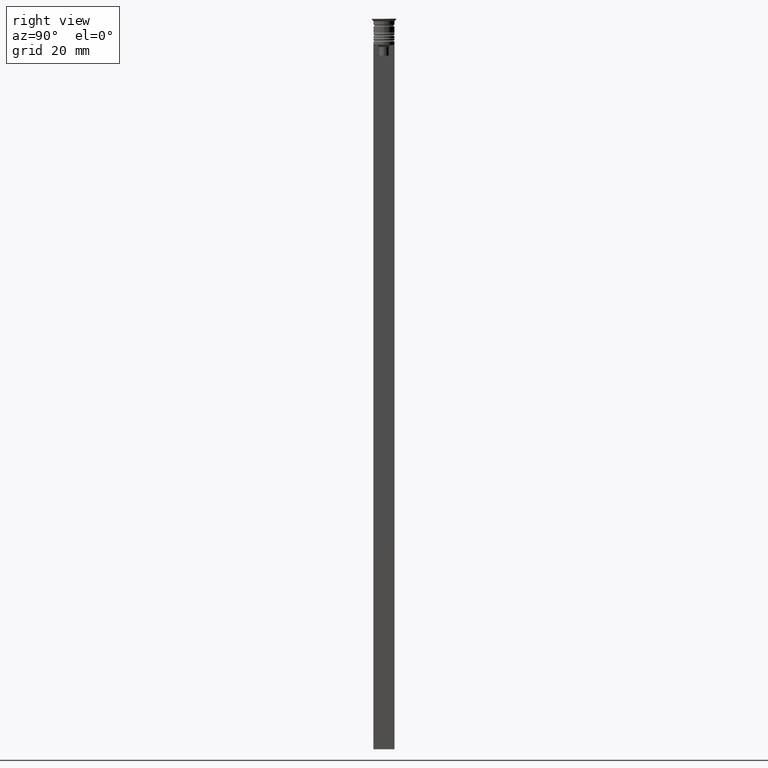
[diagram: clean part render]
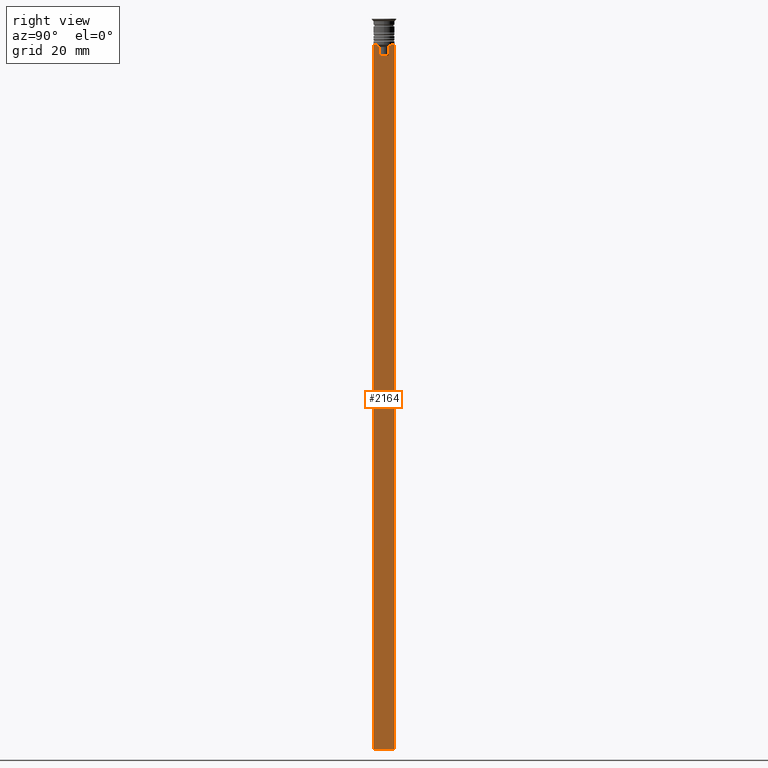
[diagram: same view with one face highlighted and labeled with its STEP entity id]
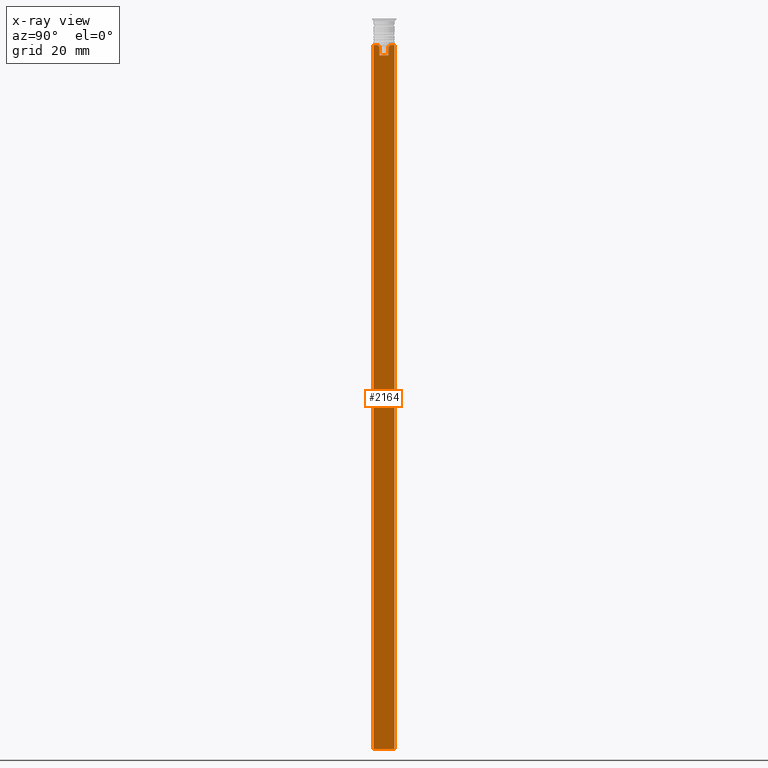
[diagram: x-ray of the same camera — body ghosted, the highlighted face saturated]
A machine part, right view. The second image highlights one B-rep face of the part: STEP entity #2164.
The next image is the same camera in x-ray: the body ghosted, the highlighted face saturated — about 0% of this face is hidden behind the body in this view.
In plain terms, the highlighted planar face has unit normal (-1, 0, 0).
Its self-contained STEP definition (entity closure, byte-faithful):
#61 = VECTOR ( 'NONE', #424, 1000.000000000000000 ) ;
#84 = VERTEX_POINT ( 'NONE', #506 ) ;
#119 = CARTESIAN_POINT ( 'NONE',  ( 0.4999999999999998890, 1.399999999999997691, -10.49999999999999822 ) ) ;
#123 = CARTESIAN_POINT ( 'NONE',  ( 0.4999999999999998890, -1.307669683062199439, 0.000000000000000000 ) ) ;
#124 = PLANE ( 'NONE',  #1947 ) ;
#136 = VECTOR ( 'NONE', #274, 1000.000000000000000 ) ;
#184 = DIRECTION ( 'NONE',  ( 0.000000000000000000, -1.000000000000000000, 0.000000000000000000 ) ) ;
#185 = EDGE_CURVE ( 'NONE', #505, #1090, #1734, .T. ) ;
#229 = CARTESIAN_POINT ( 'NONE',  ( 0.4999999999999998890, -3.000000000000000000, -207.5000000000000284 ) ) ;
#264 = DIRECTION ( 'NONE',  ( 0.000000000000000000, -1.000000000000000000, 0.000000000000000000 ) ) ;
#274 = DIRECTION ( 'NONE',  ( -0.000000000000000000, -0.000000000000000000, 1.000000000000000000 ) ) ;
#284 = VECTOR ( 'NONE', #184, 1000.000000000000000 ) ;
#302 = FACE_OUTER_BOUND ( 'NONE', #338, .T. ) ;
#312 = EDGE_CURVE ( 'NONE', #719, #1744, #1355, .T. ) ;
#338 = EDGE_LOOP ( 'NONE', ( #382, #1747, #1244, #1580, #576, #462, #2330, #547, #573, #410, #2153, #690 ) ) ;
#352 = CARTESIAN_POINT ( 'NONE',  ( 0.4999999999999998890, -3.000000000000000000, -207.5000000000000284 ) ) ;
#357 = VECTOR ( 'NONE', #833, 1000.000000000000000 ) ;
#382 = ORIENTED_EDGE ( 'NONE', *, *, #1511, .T. ) ;
#394 = VECTOR ( 'NONE', #1999, 1000.000000000000000 ) ;
#410 = ORIENTED_EDGE ( 'NONE', *, *, #1076, .T. ) ;
#424 = DIRECTION ( 'NONE',  ( 0.000000000000000000, 0.000000000000000000, -1.000000000000000000 ) ) ;
#462 = ORIENTED_EDGE ( 'NONE', *, *, #712, .T. ) ;
#499 = EDGE_CURVE ( 'NONE', #2116, #1032, #963, .T. ) ;
#502 = DIRECTION ( 'NONE',  ( -1.000000000000000000, 0.000000000000000000, 0.000000000000000000 ) ) ;
#505 = VERTEX_POINT ( 'NONE', #1015 ) ;
#506 = CARTESIAN_POINT ( 'NONE',  ( 0.4999999999999998890, -1.833030277982335754, -7.500000000000000000 ) ) ;
#547 = ORIENTED_EDGE ( 'NONE', *, *, #2302, .T. ) ;
#573 = ORIENTED_EDGE ( 'NONE', *, *, #1552, .T. ) ;
#576 = ORIENTED_EDGE ( 'NONE', *, *, #930, .T. ) ;
#595 = LINE ( 'NONE', #229, #1301 ) ;
#607 = CARTESIAN_POINT ( 'NONE',  ( 0.4999999999999998890, -3.000000000000000000, -7.500000000000000000 ) ) ;
#690 = ORIENTED_EDGE ( 'NONE', *, *, #794, .T. ) ;
#706 = CARTESIAN_POINT ( 'NONE',  ( 0.4999999999999998890, 1.307669683062199439, -8.000000000000000000 ) ) ;
#712 = EDGE_CURVE ( 'NONE', #832, #84, #1531, .T. ) ;
#718 = LINE ( 'NONE', #1465, #803 ) ;
#719 = VERTEX_POINT ( 'NONE', #1789 ) ;
#794 = EDGE_CURVE ( 'NONE', #2116, #1541, #1849, .T. ) ;
#795 = VERTEX_POINT ( 'NONE', #607 ) ;
#803 = VECTOR ( 'NONE', #1815, 1000.000000000000000 ) ;
#832 = VERTEX_POINT ( 'NONE', #968 ) ;
#833 = DIRECTION ( 'NONE',  ( 0.000000000000000000, -1.000000000000000000, 0.000000000000000000 ) ) ;
#851 = DIRECTION ( 'NONE',  ( 0.000000000000000000, 0.000000000000000000, 1.000000000000000000 ) ) ;
#883 = EDGE_CURVE ( 'NONE', #1744, #505, #2041, .T. ) ;
#904 = CARTESIAN_POINT ( 'NONE',  ( 0.4999999999999998890, 1.659046061654642967, -7.667851756010362507 ) ) ;
#930 = EDGE_CURVE ( 'NONE', #1090, #832, #1717, .T. ) ;
#934 = CARTESIAN_POINT ( 'NONE',  ( 0.4999999999999998890, 1.307669683062199439, 0.000000000000000000 ) ) ;
#941 = DIRECTION ( 'NONE',  ( 0.000000000000000000, 1.000000000000000000, 0.000000000000000000 ) ) ;
#963 = LINE ( 'NONE', #1689, #2132 ) ;
#968 = CARTESIAN_POINT ( 'NONE',  ( 0.4999999999999998890, -1.307669683062199439, -8.000000000000000000 ) ) ;
#1015 = CARTESIAN_POINT ( 'NONE',  ( 0.4999999999999998890, 1.307669683062199439, -10.49999999999999822 ) ) ;
#1032 = VERTEX_POINT ( 'NONE', #1739 ) ;
#1076 = EDGE_CURVE ( 'NONE', #1951, #1032, #595, .T. ) ;
#1090 = VERTEX_POINT ( 'NONE', #2027 ) ;
#1244 = ORIENTED_EDGE ( 'NONE', *, *, #883, .T. ) ;
#1301 = VECTOR ( 'NONE', #941, 1000.000000000000000 ) ;
#1355 = B_SPLINE_CURVE_WITH_KNOTS ( 'NONE', 3,
 ( #2195, #904, #1630, #1827 ),
 .UNSPECIFIED., .F., .F.,
 ( 4, 4 ),
 ( 0.003278537493109848298, 0.004003794023484941178 ),
 .UNSPECIFIED. ) ;
#1358 = CARTESIAN_POINT ( 'NONE',  ( 0.4999999999999998890, -3.000000000000000000, -1.417237469701779329 ) ) ;
#1411 = DIRECTION ( 'NONE',  ( 0.000000000000000000, 0.000000000000000000, -1.000000000000000000 ) ) ;
#1445 = CARTESIAN_POINT ( 'NONE',  ( 0.4999999999999998890, -1.307669683062199439, -8.000000000000000000 ) ) ;
#1465 = CARTESIAN_POINT ( 'NONE',  ( 0.4999999999999998890, -3.000000000000000000, -1.417237469701779329 ) ) ;
#1471 = CARTESIAN_POINT ( 'NONE',  ( 0.4999999999999998890, -3.000000000000000000, -7.500000000000000000 ) ) ;
#1511 = EDGE_CURVE ( 'NONE', #1541, #719, #1666, .T. ) ;
#1531 = B_SPLINE_CURVE_WITH_KNOTS ( 'NONE', 3,
 ( #1445, #1810, #2013, #1969 ),
 .UNSPECIFIED., .F., .F.,
 ( 4, 4 ),
 ( 0.007225659348748082224, 0.007950554640278054835 ),
 .UNSPECIFIED. ) ;
#1541 = VERTEX_POINT ( 'NONE', #1806 ) ;
#1552 = EDGE_CURVE ( 'NONE', #795, #1951, #718, .T. ) ;
#1580 = ORIENTED_EDGE ( 'NONE', *, *, #185, .T. ) ;
#1630 = CARTESIAN_POINT ( 'NONE',  ( 0.4999999999999998890, 1.484355510416485835, -7.834966642958598015 ) ) ;
#1666 = LINE ( 'NONE', #1989, #394 ) ;
#1689 = CARTESIAN_POINT ( 'NONE',  ( 0.4999999999999998890, 3.000000000000000000, -1.417237469701779329 ) ) ;
#1708 = VERTEX_POINT ( 'NONE', #2077 ) ;
#1717 = LINE ( 'NONE', #123, #136 ) ;
#1734 = LINE ( 'NONE', #119, #357 ) ;
#1739 = CARTESIAN_POINT ( 'NONE',  ( 0.4999999999999998890, 3.000000000000000000, -207.5000000000000284 ) ) ;
#1740 = CARTESIAN_POINT ( 'NONE',  ( 0.4999999999999998890, -3.000000000000000000, -7.500000000000000000 ) ) ;
#1744 = VERTEX_POINT ( 'NONE', #706 ) ;
#1747 = ORIENTED_EDGE ( 'NONE', *, *, #312, .T. ) ;
#1776 = LINE ( 'NONE', #1740, #2210 ) ;
#1789 = CARTESIAN_POINT ( 'NONE',  ( 0.4999999999999998890, 1.833030277982335754, -7.500000000000000000 ) ) ;
#1806 = CARTESIAN_POINT ( 'NONE',  ( 0.4999999999999998890, 2.856571371417139904, -7.500000000000000000 ) ) ;
#1810 = CARTESIAN_POINT ( 'NONE',  ( 0.4999999999999998890, -1.484307477388859153, -7.835011508197190722 ) ) ;
#1815 = DIRECTION ( 'NONE',  ( 0.000000000000000000, 0.000000000000000000, -1.000000000000000000 ) ) ;
#1827 = CARTESIAN_POINT ( 'NONE',  ( 0.4999999999999998890, 1.307669683062199439, -8.000000000000000000 ) ) ;
#1849 = LINE ( 'NONE', #2226, #2058 ) ;
#1947 = AXIS2_PLACEMENT_3D ( 'NONE', #1358, #502, #851 ) ;
#1951 = VERTEX_POINT ( 'NONE', #352 ) ;
#1969 = CARTESIAN_POINT ( 'NONE',  ( 0.4999999999999998890, -1.833030277982335754, -7.500000000000000000 ) ) ;
#1979 = LINE ( 'NONE', #1471, #284 ) ;
#1989 = CARTESIAN_POINT ( 'NONE',  ( 0.4999999999999998890, -3.000000000000000000, -7.500000000000000000 ) ) ;
#1999 = DIRECTION ( 'NONE',  ( 0.000000000000000000, -1.000000000000000000, 0.000000000000000000 ) ) ;
#2013 = CARTESIAN_POINT ( 'NONE',  ( 0.4999999999999998890, -1.659011726860414093, -7.667884880598472286 ) ) ;
#2027 = CARTESIAN_POINT ( 'NONE',  ( 0.4999999999999998890, -1.307669683062199439, -10.49999999999999822 ) ) ;
#2031 = CARTESIAN_POINT ( 'NONE',  ( 0.4999999999999998890, 3.000000000000000000, -7.500000000000000000 ) ) ;
#2041 = LINE ( 'NONE', #934, #61 ) ;
#2058 = VECTOR ( 'NONE', #264, 1000.000000000000000 ) ;
#2077 = CARTESIAN_POINT ( 'NONE',  ( 0.4999999999999998890, -2.856571371417139904, -7.500000000000000000 ) ) ;
#2110 = DIRECTION ( 'NONE',  ( 0.000000000000000000, -1.000000000000000000, 0.000000000000000000 ) ) ;
#2116 = VERTEX_POINT ( 'NONE', #2031 ) ;
#2132 = VECTOR ( 'NONE', #1411, 1000.000000000000000 ) ;
#2153 = ORIENTED_EDGE ( 'NONE', *, *, #499, .F. ) ;
#2164 = ADVANCED_FACE ( 'NONE', ( #302 ), #124, .F. ) ;
#2179 = EDGE_CURVE ( 'NONE', #84, #1708, #1776, .T. ) ;
#2195 = CARTESIAN_POINT ( 'NONE',  ( 0.4999999999999998890, 1.833030277982335754, -7.500000000000000000 ) ) ;
#2210 = VECTOR ( 'NONE', #2110, 1000.000000000000000 ) ;
#2226 = CARTESIAN_POINT ( 'NONE',  ( 0.4999999999999998890, -3.000000000000000000, -7.500000000000000000 ) ) ;
#2302 = EDGE_CURVE ( 'NONE', #1708, #795, #1979, .T. ) ;
#2330 = ORIENTED_EDGE ( 'NONE', *, *, #2179, .T. ) ;